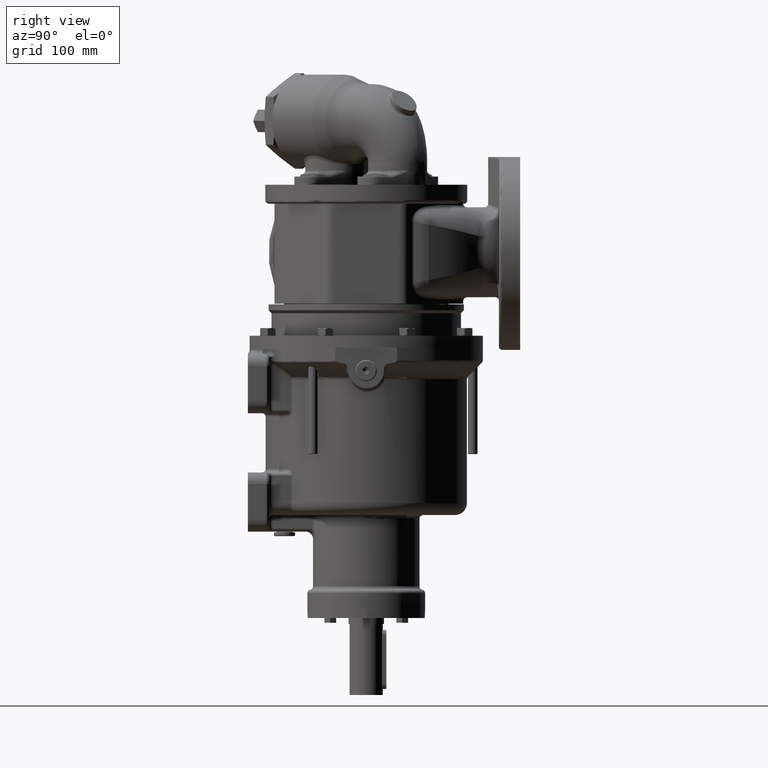
[diagram: clean part render]
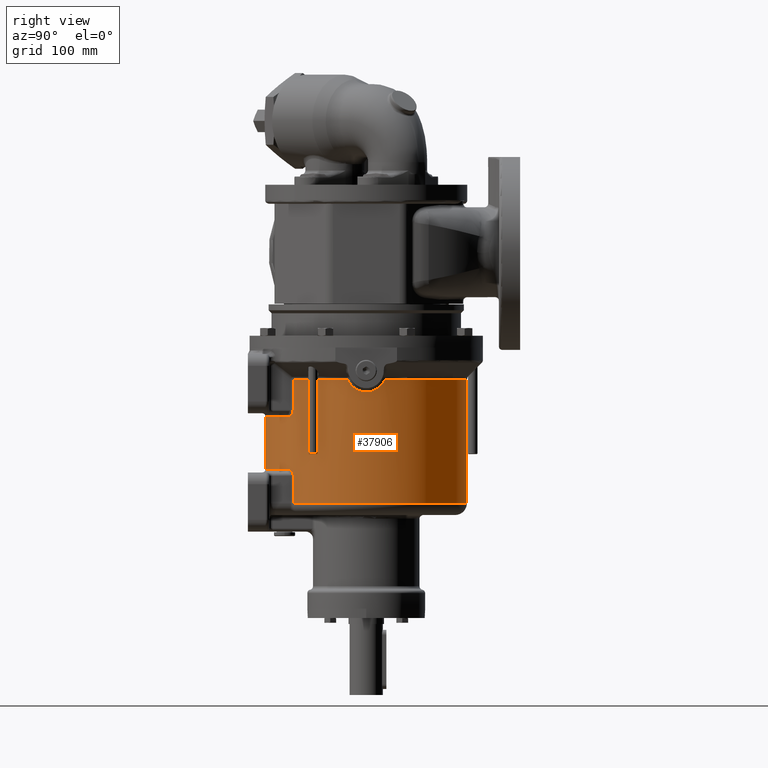
[diagram: same view with one face highlighted and labeled with its STEP entity id]
A machine part, right view. The second image highlights one B-rep face of the part: STEP entity #37906.
In plain terms, the highlighted cylindrical surface (partial cylindrical patch) has radius 85 mm, axis along (0, 0, 1).
Its self-contained STEP definition (entity closure, byte-faithful):
#7958=CARTESIAN_POINT('',(0.E0,0.E0,-2.674264068712E1));
#7959=DIRECTION('',(0.E0,0.E0,1.E0));
#7960=DIRECTION('',(6.875E-1,-7.261843774139E-1,0.E0));
#7961=AXIS2_PLACEMENT_3D('',#7958,#7959,#7960);
#7963=CARTESIAN_POINT('',(8.349643482899E1,-1.591682661483E1,
-2.674264071405E1));
#7964=CARTESIAN_POINT('',(8.351335753463E1,-1.582805355323E1,
-2.695174749161E1));
#7965=CARTESIAN_POINT('',(8.354835047033E1,-1.564295229779E1,
-2.736616863720E1));
#7966=CARTESIAN_POINT('',(8.360409645084E1,-1.534237667148E1,
-2.797698260321E1));
#7967=CARTESIAN_POINT('',(8.366270932459E1,-1.501963228089E1,
-2.857536232860E1));
#7968=CARTESIAN_POINT('',(8.372384795858E1,-1.467516912037E1,
-2.916052191943E1));
#7969=CARTESIAN_POINT('',(8.378713423777E1,-1.430959794114E1,
-2.973145469611E1));
#7970=CARTESIAN_POINT('',(8.385218317927E1,-1.392354437718E1,
-3.028725693593E1));
#7971=CARTESIAN_POINT('',(8.391859736177E1,-1.351769361892E1,
-3.082703363103E1));
#7972=CARTESIAN_POINT('',(8.398597279972E1,-1.309277382254E1,
-3.134993255566E1));
#7973=CARTESIAN_POINT('',(8.405390175528E1,-1.264955568107E1,
-3.185514205203E1));
#7974=CARTESIAN_POINT('',(8.412197639812E1,-1.218884690766E1,
-3.234189761466E1));
#7975=CARTESIAN_POINT('',(8.418979229401E1,-1.171148660007E1,
-3.280948594671E1));
#7976=CARTESIAN_POINT('',(8.425695175499E1,-1.121833919635E1,
-3.325724826948E1));
#7977=CARTESIAN_POINT('',(8.432306698975E1,-1.071028803715E1,
-3.368458264366E1));
#7978=CARTESIAN_POINT('',(8.438776296320E1,-1.018822892198E1,
-3.409094514982E1));
#7979=CARTESIAN_POINT('',(8.445067992627E1,-9.653063763390E0,
-3.447585000892E1));
#7980=CARTESIAN_POINT('',(8.451147557516E1,-9.105694557201E0,
-3.483886865756E1));
#7981=CARTESIAN_POINT('',(8.456982681936E1,-8.547017846178E0,
-3.517962785427E1));
#7982=CARTESIAN_POINT('',(8.462543115399E1,-7.977919842738E0,
-3.549780692186E1));
#7983=CARTESIAN_POINT('',(8.467800765421E1,-7.399272279926E0,
-3.579313429523E1));
#7984=CARTESIAN_POINT('',(8.472729761975E1,-6.811929041822E0,
-3.606538353448E1));
#7985=CARTESIAN_POINT('',(8.477306490312E1,-6.216723641060E0,
-3.631436894502E1));
#7986=CARTESIAN_POINT('',(8.481509596787E1,-5.614467533237E0,
-3.653994097396E1));
#7987=CARTESIAN_POINT('',(8.485319972579E1,-5.005949244505E0,
-3.674198153177E1));
#7988=CARTESIAN_POINT('',(8.488720720003E1,-4.391934342367E0,
-3.692039935554E1));
#7989=CARTESIAN_POINT('',(8.491697107138E1,-3.773166124802E0,
-3.707512557468E1));
#7990=CARTESIAN_POINT('',(8.494236515695E1,-3.150366916069E0,
-3.720610958691E1));
#7991=CARTESIAN_POINT('',(8.496328386118E1,-2.524239967597E0,
-3.731331530898E1));
#7992=CARTESIAN_POINT('',(8.497964164009E1,-1.895471911739E0,
-3.739671788485E1));
#7993=CARTESIAN_POINT('',(8.499137251794E1,-1.264735558782E0,
-3.745630093113E1));
#7994=CARTESIAN_POINT('',(8.499842967976E1,-6.326930259407E-1,
-3.749205434339E1));
#7995=CARTESIAN_POINT('',(8.500078516293E1,7.658655438170E-7,
-3.750397269532E1));
#7996=CARTESIAN_POINT('',(8.499842966850E1,6.326945123118E-1,
-3.749205428780E1));
#7997=CARTESIAN_POINT('',(8.499137249698E1,1.264736951236E0,-3.745630082847E1));
#7998=CARTESIAN_POINT('',(8.497964161098E1,1.895473203864E0,-3.739671774183E1));
#7999=CARTESIAN_POINT('',(8.496328382676E1,2.524241111304E0,-3.731331513964E1));
#8000=CARTESIAN_POINT('',(8.494236512148E1,3.150367857900E0,-3.720610941244E1));
#8001=CARTESIAN_POINT('',(8.491697103903E1,3.773166839361E0,-3.707512541637E1));
#8002=CARTESIAN_POINT('',(8.488720717602E1,4.391934792952E0,-3.692039924016E1));
#8003=CARTESIAN_POINT('',(8.485319971628E1,5.005949392926E0,-3.674198149219E1));
#8004=CARTESIAN_POINT('',(8.481509597778E1,5.614467372653E0,-3.653994103805E1));
#8005=CARTESIAN_POINT('',(8.477306493647E1,6.216723176234E0,-3.631436913676E1));
#8006=CARTESIAN_POINT('',(8.472729768214E1,6.811928256177E0,-3.606538388798E1));
#8007=CARTESIAN_POINT('',(8.467800775140E1,7.399271158721E0,-3.579313484786E1));
#8008=CARTESIAN_POINT('',(8.462543129082E1,7.977918383182E0,-3.549780770845E1));
#8009=CARTESIAN_POINT('',(8.456982699936E1,8.547016058186E0,-3.517962890502E1));
#8010=CARTESIAN_POINT('',(8.451147579921E1,9.105692472028E0,-3.483886999036E1));
#8011=CARTESIAN_POINT('',(8.445068019364E1,9.653061419621E0,-3.447585163399E1));
#8012=CARTESIAN_POINT('',(8.438776327373E1,1.018822634591E1,-3.409094708296E1));
#8013=CARTESIAN_POINT('',(8.432306734326E1,1.071028525072E1,-3.368458490323E1));
#8014=CARTESIAN_POINT('',(8.425695214918E1,1.121833623334E1,-3.325725086332E1));
#8015=CARTESIAN_POINT('',(8.418979272448E1,1.171148350399E1,-3.280948887056E1));
#8016=CARTESIAN_POINT('',(8.412197685933E1,1.218884372372E1,-3.234190085734E1));
#8017=CARTESIAN_POINT('',(8.405390224106E1,1.264955245281E1,-3.185514559780E1));
#8018=CARTESIAN_POINT('',(8.398597330315E1,1.309277059349E1,-3.134993638319E1));
#8019=CARTESIAN_POINT('',(8.391859787513E1,1.351769043222E1,-3.082703770847E1));
#8020=CARTESIAN_POINT('',(8.385218369918E1,1.392354124761E1,-3.028726127196E1));
#8021=CARTESIAN_POINT('',(8.378713475039E1,1.430959493845E1,-2.973145918468E1));
#8022=CARTESIAN_POINT('',(8.372384848375E1,1.467516613104E1,-2.916052682595E1));
#8023=CARTESIAN_POINT('',(8.366270972980E1,1.501963001591E1,-2.857536627737E1));
#8024=CARTESIAN_POINT('',(8.360409709096E1,1.534237319752E1,-2.797698941687E1));
#8025=CARTESIAN_POINT('',(8.354835044225E1,1.564295244700E1,-2.736616852962E1));
#8026=CARTESIAN_POINT('',(8.351335753193E1,1.582805360573E1,-2.695174724275E1));
#8027=CARTESIAN_POINT('',(8.349643484136E1,1.591682657923E1,-2.674264068257E1));
#8029=CARTESIAN_POINT('',(0.E0,0.E0,-2.674264068712E1));
#8030=DIRECTION('',(0.E0,0.E0,1.E0));
#8031=DIRECTION('',(9.823109981959E-1,1.872567831170E-1,0.E0));
#8032=AXIS2_PLACEMENT_3D('',#8029,#8030,#8031);
#8034=DIRECTION('',(0.E0,0.E0,-1.E0));
#8035=VECTOR('',#8034,1.047573593129E2);
#8036=CARTESIAN_POINT('',(-1.167661676690E-14,8.5E1,-2.674264068712E1));
#8037=LINE('',#8036,#8035);
#8038=CARTESIAN_POINT('',(0.E0,0.E0,-1.315E2));
#8039=DIRECTION('',(0.E0,0.E0,1.E0));
#8040=DIRECTION('',(6.875E-1,-7.261843774139E-1,0.E0));
#8041=AXIS2_PLACEMENT_3D('',#8038,#8039,#8040);
#8043=DIRECTION('',(1.139423550680E-9,-1.203536439591E-9,1.E0));
#8044=VECTOR('',#8043,2.3E1);
#8045=CARTESIAN_POINT('',(5.84375E1,-6.172567208018E1,-1.315E2));
#8046=LINE('',#8045,#8044);
#8047=CARTESIAN_POINT('',(5.264204545455E1,-6.673690920594E1,-1.025E2));
#8048=CARTESIAN_POINT('',(5.274663913696E1,-6.665440576483E1,
-1.025000000554E2));
#8049=CARTESIAN_POINT('',(5.295579823247E1,-6.648862434744E1,
-1.025058516239E2));
#8050=CARTESIAN_POINT('',(5.326996369431E1,-6.623718775854E1,
-1.025323379467E2));
#8051=CARTESIAN_POINT('',(5.358293704926E1,-6.598426077916E1,
-1.025765878929E2));
#8052=CARTESIAN_POINT('',(5.389335957745E1,-6.573095855944E1,
-1.026384788961E2));
#8053=CARTESIAN_POINT('',(5.419986718882E1,-6.547844177828E1,
-1.027177465087E2));
#8054=CARTESIAN_POINT('',(5.450107628816E1,-6.522793104643E1,
-1.028139536825E2));
#8055=CARTESIAN_POINT('',(5.479566242904E1,-6.498064038221E1,
-1.029265082407E2));
#8056=CARTESIAN_POINT('',(5.508235538305E1,-6.473777825269E1,
-1.030546614645E2));
#8057=CARTESIAN_POINT('',(5.535998141726E1,-6.450050783384E1,
-1.031975264814E2));
#8058=CARTESIAN_POINT('',(5.562748100835E1,-6.426992615923E1,
-1.033540959120E2));
#8059=CARTESIAN_POINT('',(5.588393152731E1,-6.404703799588E1,
-1.035232674791E2));
#8060=CARTESIAN_POINT('',(5.612856118517E1,-6.383273635636E1,
-1.037038720339E2));
#8061=CARTESIAN_POINT('',(5.636075784491E1,-6.362778715549E1,
-1.038947039191E2));
#8062=CARTESIAN_POINT('',(5.658007077858E1,-6.343282014930E1,
-1.040945511381E2));
#8063=CARTESIAN_POINT('',(5.678620624294E1,-6.324832586570E1,
-1.043022238695E2));
#8064=CARTESIAN_POINT('',(5.697901751548E1,-6.307465831771E1,
-1.045165798707E2));
#8065=CARTESIAN_POINT('',(5.715849033345E1,-6.291204291448E1,
-1.047365455420E2));
#8066=CARTESIAN_POINT('',(5.732472508803E1,-6.276058849225E1,
-1.049611320252E2));
#8067=CARTESIAN_POINT('',(5.747791699726E1,-6.262030238497E1,
-1.051894460387E2));
#8068=CARTESIAN_POINT('',(5.761833603185E1,-6.249110685005E1,
-1.054206963185E2));
#8069=CARTESIAN_POINT('',(5.774630734820E1,-6.237285601880E1,
-1.056541956191E2));
#8070=CARTESIAN_POINT('',(5.786219360854E1,-6.226535192456E1,
-1.058893612065E2));
#8071=CARTESIAN_POINT('',(5.796637567813E1,-6.216836268421E1,
-1.061257063904E2));
#8072=CARTESIAN_POINT('',(5.805923225161E1,-6.208164223941E1,
-1.063628162792E2));
#8073=CARTESIAN_POINT('',(5.814114011667E1,-6.200493114487E1,
-1.066003645156E2));
#8074=CARTESIAN_POINT('',(5.821246500724E1,-6.193796617702E1,
-1.068381169651E2));
#8075=CARTESIAN_POINT('',(5.827354490294E1,-6.188049717887E1,
-1.070759038015E2));
#8076=CARTESIAN_POINT('',(5.832468439779E1,-6.183229357220E1,
-1.073136146882E2));
#8077=CARTESIAN_POINT('',(5.836614952370E1,-6.179315035036E1,
-1.075511876060E2));
#8078=CARTESIAN_POINT('',(5.839816314737E1,-6.176289342790E1,
-1.077886101208E2));
#8079=CARTESIAN_POINT('',(5.842089975303E1,-6.174138539192E1,
-1.080258565096E2));
#8080=CARTESIAN_POINT('',(5.843449140833E1,-6.172852064809E1,
-1.082630783916E2));
#8081=CARTESIAN_POINT('',(5.843750019326E1,-6.172567181862E1,
-1.084210469651E2));
#8082=CARTESIAN_POINT('',(5.843750002621E1,-6.172567210786E1,-1.085E2));
#8084=CARTESIAN_POINT('',(0.E0,0.E0,-1.025E2));
#8085=DIRECTION('',(0.E0,0.E0,1.E0));
#8086=DIRECTION('',(0.E0,-1.E0,0.E0));
#8087=AXIS2_PLACEMENT_3D('',#8084,#8085,#8086);
#8089=DIRECTION('',(0.E0,0.E0,-1.E0));
#8090=VECTOR('',#8089,4.4E1);
#8091=CARTESIAN_POINT('',(1.688136566328E-14,-8.5E1,-5.85E1));
#8092=LINE('',#8091,#8090);
#8093=CARTESIAN_POINT('',(0.E0,0.E0,-5.85E1));
#8094=DIRECTION('',(0.E0,0.E0,-1.E0));
#8095=DIRECTION('',(6.193181818182E-1,-7.851401083051E-1,0.E0));
#8096=AXIS2_PLACEMENT_3D('',#8093,#8094,#8095);
#8098=CARTESIAN_POINT('',(5.843750000980E1,-6.172567209053E1,-5.25E1));
#8099=CARTESIAN_POINT('',(5.843750018524E1,-6.172567178680E1,
-5.257893316796E1));
#8100=CARTESIAN_POINT('',(5.843449300359E1,-6.172851915599E1,
-5.273687299516E1));
#8101=CARTESIAN_POINT('',(5.842090376108E1,-6.174138159424E1,
-5.297409158735E1));
#8102=CARTESIAN_POINT('',(5.839816746915E1,-6.176288934296E1,
-5.321135391607E1));
#8103=CARTESIAN_POINT('',(5.836615309785E1,-6.179314697444E1,
-5.344878964134E1));
#8104=CARTESIAN_POINT('',(5.832468664944E1,-6.183229144921E1,
-5.368637358227E1));
#8105=CARTESIAN_POINT('',(5.827354481128E1,-6.188049726673E1,
-5.392409664316E1));
#8106=CARTESIAN_POINT('',(5.821246178601E1,-6.193796920680E1,
-5.416189516208E1));
#8107=CARTESIAN_POINT('',(5.814113295112E1,-6.200493786744E1,
-5.439965839715E1));
#8108=CARTESIAN_POINT('',(5.805922003073E1,-6.208165367300E1,
-5.463721742554E1));
#8109=CARTESIAN_POINT('',(5.796635789305E1,-6.216837927350E1,
-5.487433671273E1));
#8110=CARTESIAN_POINT('',(5.786216829042E1,-6.226537546132E1,
-5.511069335012E1));
#8111=CARTESIAN_POINT('',(5.774627425554E1,-6.237288666443E1,
-5.534586803189E1));
#8112=CARTESIAN_POINT('',(5.761829860899E1,-6.249114135827E1,
-5.557936832992E1));
#8113=CARTESIAN_POINT('',(5.747787877465E1,-6.262033746668E1,
-5.581061355771E1));
#8114=CARTESIAN_POINT('',(5.732469064210E1,-6.276061994534E1,
-5.603891658784E1));
#8115=CARTESIAN_POINT('',(5.715846389425E1,-6.291206691896E1,
-5.626348820813E1));
#8116=CARTESIAN_POINT('',(5.697900292332E1,-6.307467147537E1,
-5.648343681254E1));
#8117=CARTESIAN_POINT('',(5.678620671438E1,-6.324832541136E1,
-5.669777518165E1));
#8118=CARTESIAN_POINT('',(5.658008862972E1,-6.343280419025E1,
-5.690543121418E1));
#8119=CARTESIAN_POINT('',(5.636079426534E1,-6.362775485542E1,
-5.710526396264E1));
#8120=CARTESIAN_POINT('',(5.612861591365E1,-6.383268819465E1,
-5.729608473366E1));
#8121=CARTESIAN_POINT('',(5.588400268781E1,-6.404697587101E1,
-5.747668230447E1));
#8122=CARTESIAN_POINT('',(5.562756553061E1,-6.426985297580E1,
-5.764585109009E1));
#8123=CARTESIAN_POINT('',(5.536007551663E1,-6.450042705195E1,
-5.780242149824E1));
#8124=CARTESIAN_POINT('',(5.508245464995E1,-6.473769378475E1,
-5.794529066119E1));
#8125=CARTESIAN_POINT('',(5.479576224523E1,-6.498055621612E1,
-5.807345035061E1));
#8126=CARTESIAN_POINT('',(5.450117216073E1,-6.522785095756E1,
-5.818601277502E1));
#8127=CARTESIAN_POINT('',(5.419995465767E1,-6.547836940247E1,
-5.828222837367E1));
#8128=CARTESIAN_POINT('',(5.389343549839E1,-6.573089634807E1,
-5.836150397208E1));
#8129=CARTESIAN_POINT('',(5.358299721630E1,-6.598421196453E1,
-5.842340214809E1));
#8130=CARTESIAN_POINT('',(5.327000730451E1,-6.623715272809E1,
-5.846765744982E1));
#8131=CARTESIAN_POINT('',(5.295582447641E1,-6.648860349880E1,
-5.849414727627E1));
#8132=CARTESIAN_POINT('',(5.274664851258E1,-6.665439836912E1,
-5.849999993968E1));
#8133=CARTESIAN_POINT('',(5.264204545455E1,-6.673690920594E1,-5.85E1));
#8135=DIRECTION('',(-3.802778183018E-10,4.016886988840E-10,1.E0));
#8136=VECTOR('',#8135,2.575735931288E1);
#8137=CARTESIAN_POINT('',(5.843750000980E1,-6.172567209053E1,-5.25E1));
#8138=LINE('',#8137,#8136);
#8736=CARTESIAN_POINT('',(5.843750000980E1,-6.172567209053E1,-5.25E1));
#21305=CARTESIAN_POINT('',(-1.040949779275E-14,8.5E1,-1.315E2));
#21306=VERTEX_POINT('',#21305);
#21307=CARTESIAN_POINT('',(5.84375E1,-6.172567208018E1,-1.315E2));
#21308=VERTEX_POINT('',#21307);
#21522=CARTESIAN_POINT('',(-1.040949779275E-14,8.5E1,-2.674264068712E1));
#21524=VERTEX_POINT('',#21522);
#21574=CARTESIAN_POINT('',(5.84375E1,-6.172567208018E1,-2.674264068712E1));
#21575=VERTEX_POINT('',#21574);
#21576=CARTESIAN_POINT('',(8.349643484104E1,-1.591682659439E1,
-2.674264068712E1));
#21577=VERTEX_POINT('',#21576);
#21582=VERTEX_POINT('',#8027);
#21590=CARTESIAN_POINT('',(1.561424668913E-14,-8.5E1,-5.85E1));
#21591=VERTEX_POINT('',#21590);
#21592=CARTESIAN_POINT('',(5.264204545455E1,-6.673690920594E1,-5.85E1));
#21593=VERTEX_POINT('',#21592);
#21596=VERTEX_POINT('',#8736);
#21597=VERTEX_POINT('',#8047);
#21598=VERTEX_POINT('',#8082);
#21601=CARTESIAN_POINT('',(2.081899558550E-14,-8.5E1,-1.025E2));
#21602=VERTEX_POINT('',#21601);
#37878=CARTESIAN_POINT('',(0.E0,0.E0,-2.37975E2));
#37879=DIRECTION('',(0.E0,0.E0,1.E0));
#37880=DIRECTION('',(0.E0,-1.E0,0.E0));
#37881=AXIS2_PLACEMENT_3D('',#37878,#37879,#37880);
#37882=CYLINDRICAL_SURFACE('',#37881,8.5E1);
#37884=ORIENTED_EDGE('',*,*,#37883,.T.);
#37886=ORIENTED_EDGE('',*,*,#37885,.T.);
#37887=ORIENTED_EDGE('',*,*,#37121,.T.);
#37888=ORIENTED_EDGE('',*,*,#37102,.T.);
#37890=ORIENTED_EDGE('',*,*,#37889,.F.);
#37892=ORIENTED_EDGE('',*,*,#37891,.T.);
#37894=ORIENTED_EDGE('',*,*,#37893,.F.);
#37896=ORIENTED_EDGE('',*,*,#37895,.F.);
#37897=ORIENTED_EDGE('',*,*,#37092,.F.);
#37899=ORIENTED_EDGE('',*,*,#37898,.F.);
#37901=ORIENTED_EDGE('',*,*,#37900,.F.);
#37903=ORIENTED_EDGE('',*,*,#37902,.T.);
#37904=EDGE_LOOP('',(#37884,#37886,#37887,#37888,#37890,#37892,#37894,#37896,
#37897,#37899,#37901,#37903));
#37905=FACE_OUTER_BOUND('',#37904,.F.);
#37906=ADVANCED_FACE('',(#37905),#37882,.T.);
#7962=CIRCLE('',#7961,8.5E1);
#8028=B_SPLINE_CURVE_WITH_KNOTS('',3,(#7963,#7964,#7965,#7966,#7967,#7968,#7969,
#7970,#7971,#7972,#7973,#7974,#7975,#7976,#7977,#7978,#7979,#7980,#7981,#7982,
#7983,#7984,#7985,#7986,#7987,#7988,#7989,#7990,#7991,#7992,#7993,#7994,#7995,
#7996,#7997,#7998,#7999,#8000,#8001,#8002,#8003,#8004,#8005,#8006,#8007,#8008,
#8009,#8010,#8011,#8012,#8013,#8014,#8015,#8016,#8017,#8018,#8019,#8020,#8021,
#8022,#8023,#8024,#8025,#8026,#8027),.UNSPECIFIED.,.F.,.F.,(4,1,1,1,1,1,1,1,1,1,
1,1,1,1,1,1,1,1,1,1,1,1,1,1,1,1,1,1,1,1,1,1,1,1,1,1,1,1,1,1,1,1,1,1,1,1,1,1,1,1,
1,1,1,1,1,1,1,1,1,1,1,1,4),(0.E0,1.612903225806E-2,3.225806451613E-2,
4.838709677419E-2,6.451612903226E-2,8.064516129032E-2,9.677419354839E-2,
1.129032258065E-1,1.290322580645E-1,1.451612903226E-1,1.612903225806E-1,
1.774193548387E-1,1.935483870968E-1,2.096774193548E-1,2.258064516129E-1,
2.419354838710E-1,2.580645161290E-1,2.741935483871E-1,2.903225806452E-1,
3.064516129032E-1,3.225806451613E-1,3.387096774194E-1,3.548387096774E-1,
3.709677419355E-1,3.870967741935E-1,4.032258064516E-1,4.193548387097E-1,
4.354838709677E-1,4.516129032258E-1,4.677419354839E-1,4.838709677419E-1,5.E-1,
5.161290322581E-1,5.322580645161E-1,5.483870967742E-1,5.645161290323E-1,
5.806451612903E-1,5.967741935484E-1,6.129032258065E-1,6.290322580645E-1,
6.451612903226E-1,6.612903225806E-1,6.774193548387E-1,6.935483870968E-1,
7.096774193548E-1,7.258064516129E-1,7.419354838710E-1,7.580645161290E-1,
7.741935483871E-1,7.903225806452E-1,8.064516129032E-1,8.225806451613E-1,
8.387096774194E-1,8.548387096774E-1,8.709677419355E-1,8.870967741935E-1,
9.032258064516E-1,9.193548387097E-1,9.354838709677E-1,9.516129032258E-1,
9.677419354839E-1,9.838709677419E-1,1.E0),.UNSPECIFIED.);
#8033=CIRCLE('',#8032,8.5E1);
#8042=CIRCLE('',#8041,8.5E1);
#8083=B_SPLINE_CURVE_WITH_KNOTS('',3,(#8047,#8048,#8049,#8050,#8051,#8052,#8053,
#8054,#8055,#8056,#8057,#8058,#8059,#8060,#8061,#8062,#8063,#8064,#8065,#8066,
#8067,#8068,#8069,#8070,#8071,#8072,#8073,#8074,#8075,#8076,#8077,#8078,#8079,
#8080,#8081,#8082),.UNSPECIFIED.,.F.,.F.,(4,1,1,1,1,1,1,1,1,1,1,1,1,1,1,1,1,1,1,
1,1,1,1,1,1,1,1,1,1,1,1,1,1,4),(0.E0,3.030303030303E-2,6.060606060606E-2,
9.090909090909E-2,1.212121212121E-1,1.515151515152E-1,1.818181818182E-1,
2.121212121212E-1,2.424242424242E-1,2.727272727273E-1,3.030303030303E-1,
3.333333333333E-1,3.636363636364E-1,3.939393939394E-1,4.242424242424E-1,
4.545454545455E-1,4.848484848485E-1,5.151515151515E-1,5.454545454545E-1,
5.757575757576E-1,6.060606060606E-1,6.363636363636E-1,6.666666666667E-1,
6.969696969697E-1,7.272727272727E-1,7.575757575758E-1,7.878787878788E-1,
8.181818181818E-1,8.484848484848E-1,8.787878787879E-1,9.090909090909E-1,
9.393939393939E-1,9.696969696970E-1,1.E0),.UNSPECIFIED.);
#8088=CIRCLE('',#8087,8.5E1);
#8097=CIRCLE('',#8096,8.5E1);
#8134=B_SPLINE_CURVE_WITH_KNOTS('',3,(#8098,#8099,#8100,#8101,#8102,#8103,#8104,
#8105,#8106,#8107,#8108,#8109,#8110,#8111,#8112,#8113,#8114,#8115,#8116,#8117,
#8118,#8119,#8120,#8121,#8122,#8123,#8124,#8125,#8126,#8127,#8128,#8129,#8130,
#8131,#8132,#8133),.UNSPECIFIED.,.F.,.F.,(4,1,1,1,1,1,1,1,1,1,1,1,1,1,1,1,1,1,1,
1,1,1,1,1,1,1,1,1,1,1,1,1,1,4),(0.E0,3.030303030303E-2,6.060606060606E-2,
9.090909090909E-2,1.212121212121E-1,1.515151515152E-1,1.818181818182E-1,
2.121212121212E-1,2.424242424242E-1,2.727272727273E-1,3.030303030303E-1,
3.333333333333E-1,3.636363636364E-1,3.939393939394E-1,4.242424242424E-1,
4.545454545455E-1,4.848484848485E-1,5.151515151515E-1,5.454545454545E-1,
5.757575757576E-1,6.060606060606E-1,6.363636363636E-1,6.666666666667E-1,
6.969696969697E-1,7.272727272727E-1,7.575757575758E-1,7.878787878788E-1,
8.181818181818E-1,8.484848484848E-1,8.787878787879E-1,9.090909090909E-1,
9.393939393939E-1,9.696969696970E-1,1.E0),.UNSPECIFIED.);
#37092=EDGE_CURVE('',#21591,#21602,#8092,.T.);
#37102=EDGE_CURVE('',#21524,#21306,#8037,.T.);
#37121=EDGE_CURVE('',#21582,#21524,#8033,.T.);
#37883=EDGE_CURVE('',#21575,#21577,#7962,.T.);
#37885=EDGE_CURVE('',#21577,#21582,#8028,.T.);
#37889=EDGE_CURVE('',#21308,#21306,#8042,.T.);
#37891=EDGE_CURVE('',#21308,#21598,#8046,.T.);
#37893=EDGE_CURVE('',#21597,#21598,#8083,.T.);
#37895=EDGE_CURVE('',#21602,#21597,#8088,.T.);
#37898=EDGE_CURVE('',#21593,#21591,#8097,.T.);
#37900=EDGE_CURVE('',#21596,#21593,#8134,.T.);
#37902=EDGE_CURVE('',#21596,#21575,#8138,.T.);